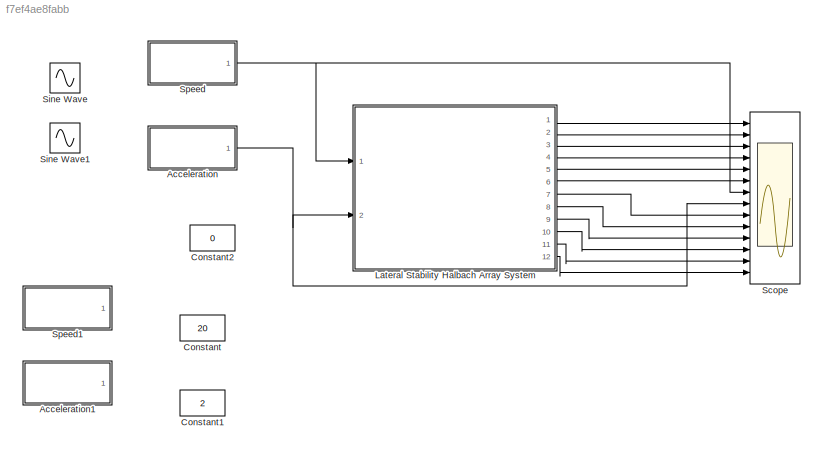
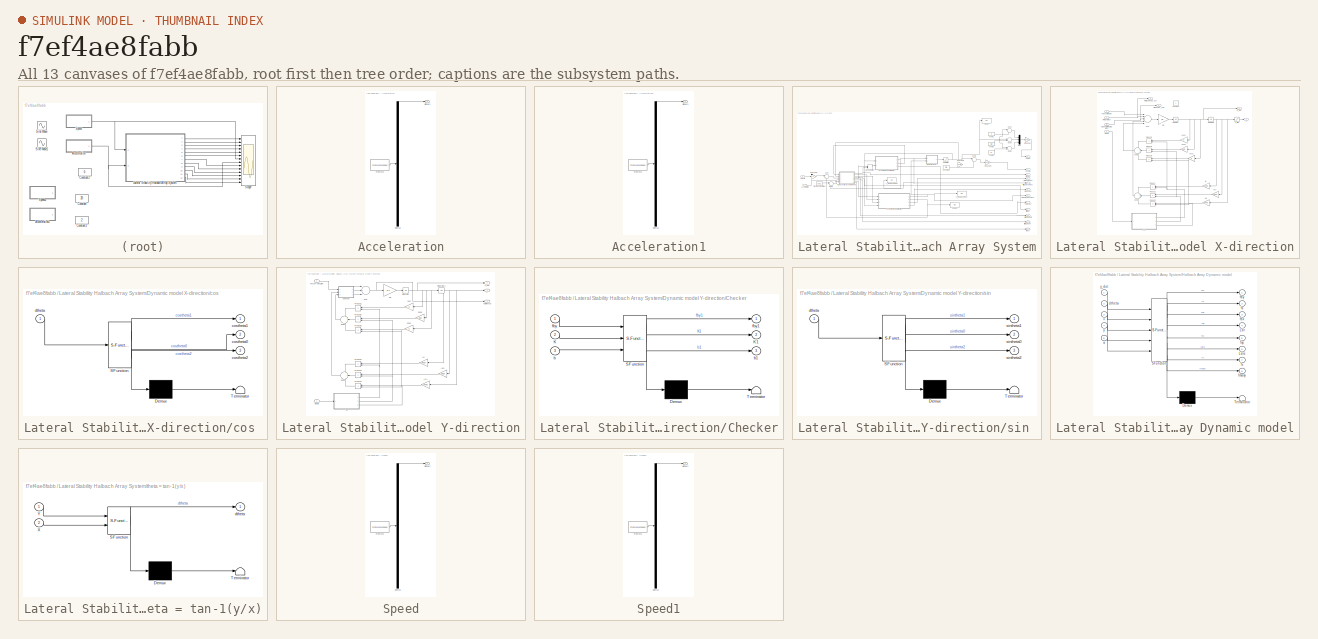
[diagram: thumbnail index - all 13 canvases of the model, root first then tree order]
MODEL slx_f7ef4ae8fabb
KIND model
CONFIG AbsTol = auto
CONFIG EnableMultiTasking = off
CONFIG FixedStep = auto
CONFIG MaxStep = auto
CONFIG MinStep = auto
CONFIG RelTol = 1e-3
CONFIG SampleTimeConstraint = Unconstrained
CONFIG Solver = VariableStepAuto
CONFIG SolverName = VariableStepAuto
CONFIG StartTime = 0.0
CONFIG StopTime = 10
BLOCK [SubSystem] Acceleration
  ClipboardFcn = sigbuilder_block('clipboard');
  CloseFcn = sigbuilder_block('close');
  ContinueFcn = sigbuilder_block('continue');
  CopyFcn = sigbuilder_block('copy');
  DeleteFcn = sigbuilder_block('delete');
  LoadFcn = sigbuilder_block('load');
  MaskHideContents = on
  ModelCloseFcn = sigbuilder_block('modelClose');
  NameChangeFcn = sigbuilder_block('namechange');
  OpenFcn = sigbuilder_block('open',[440.25 156.75 544.5 355.5 ]);
  PauseFcn = sigbuilder_block('pause');
  Ports = [0, 1]
  PreSaveFcn = sigbuilder_block('preSave');
  RequestExecContextInheritance = off
  StartFcn = sigbuilder_block('start');
  StopFcn = sigbuilder_block('stop');
  Tag = STV Subsys
BLOCK [Demux] Acceleration/Demux
  Outputs = 1
  Ports = [1, 1]
  Tag = STV Demux
BLOCK [FromWorkspace] Acceleration/FromWs
  SampleTime = 0
  Tag = STV FromWs
  VariableName = tuvar
  ZeroCross = on
BLOCK [Outport] Acceleration/Signal 2
  IconDisplay = Port number
  Tag = STV Outport
BLOCK [SubSystem] Acceleration1
  ClipboardFcn = sigbuilder_block('clipboard');
  CloseFcn = sigbuilder_block('close');
  ContinueFcn = sigbuilder_block('continue');
  CopyFcn = sigbuilder_block('copy');
  DeleteFcn = sigbuilder_block('delete');
  LoadFcn = sigbuilder_block('load');
  MaskHideContents = on
  ModelCloseFcn = sigbuilder_block('modelClose');
  NameChangeFcn = sigbuilder_block('namechange');
  OpenFcn = sigbuilder_block('open',[440.25 156.75 544.5 355.5 ]);
  PauseFcn = sigbuilder_block('pause');
  Ports = [0, 1]
  PreSaveFcn = sigbuilder_block('preSave');
  RequestExecContextInheritance = off
  StartFcn = sigbuilder_block('start');
  StopFcn = sigbuilder_block('stop');
  Tag = STV Subsys
BLOCK [Demux] Acceleration1/Demux
  Outputs = 1
  Ports = [1, 1]
  Tag = STV Demux
BLOCK [FromWorkspace] Acceleration1/FromWs
  SampleTime = 0
  Tag = STV FromWs
  VariableName = tuvar
  ZeroCross = on
BLOCK [Outport] Acceleration1/Signal 2
  IconDisplay = Port number
  Tag = STV Outport
BLOCK [Constant] Constant
  Value = 20
BLOCK [Constant] Constant1
  Value = 2
BLOCK [Constant] Constant2
  Value = 0
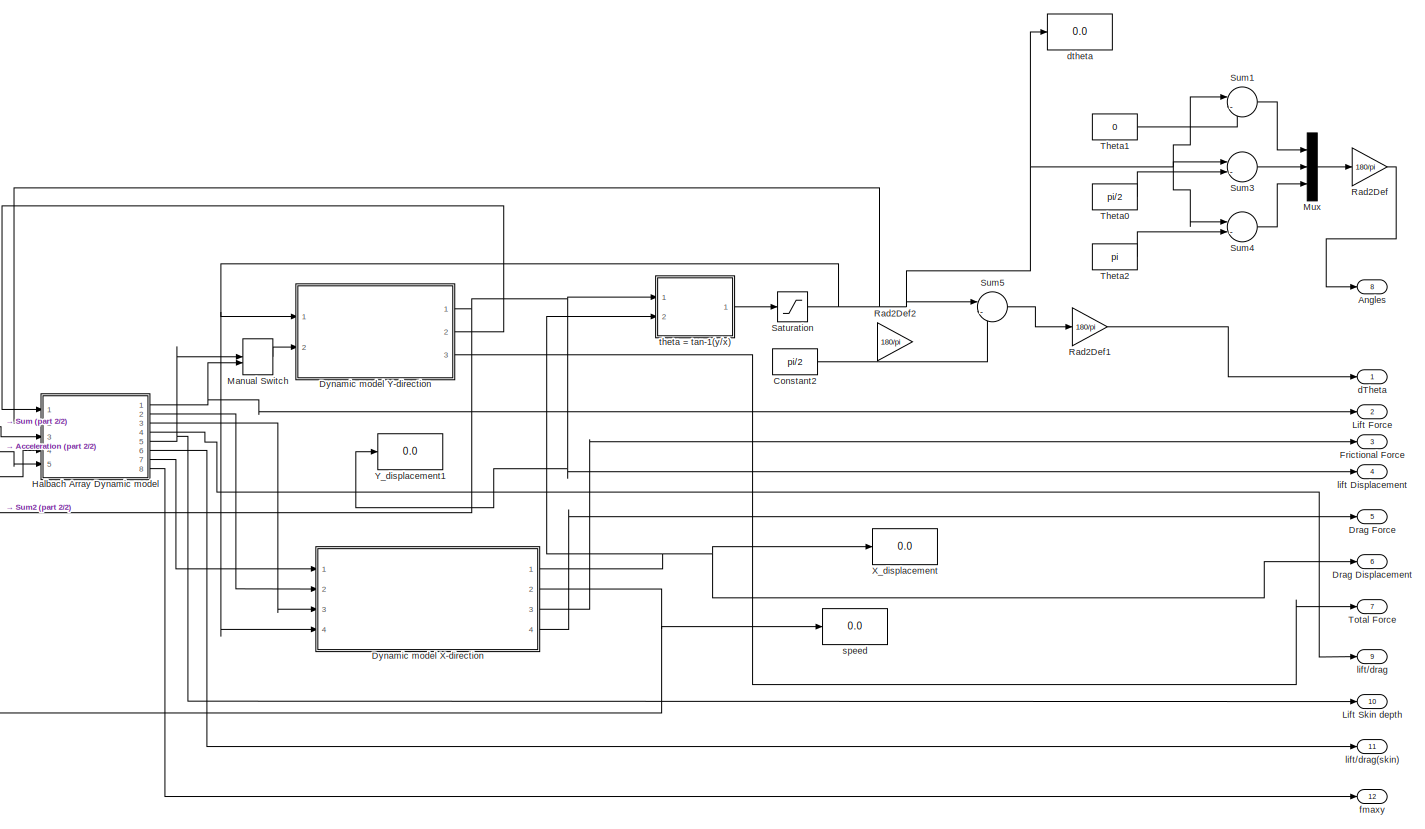
[diagram: Lateral Stability Halbach Array System - part 1/2, most of the canvas]
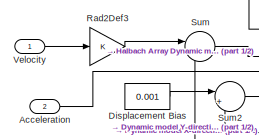
[diagram: Lateral Stability Halbach Array System - part 2/2, middle left region]
BLOCK [SubSystem] Lateral Stability Halbach Array System
  Ports = [2, 12]
  RequestExecContextInheritance = off
BLOCK [Inport] Lateral Stability Halbach Array System/Acceleration
  IconDisplay = Port number
  Port = 2
BLOCK [Outport] Lateral Stability Halbach Array System/Angles
  IconDisplay = Port number
  Port = 8
BLOCK [Constant] Lateral Stability Halbach Array System/Constant2
  Value = pi/2
BLOCK [Constant] Lateral Stability Halbach Array System/Displacement Bias
  Value = 0.001
BLOCK [Outport] Lateral Stability Halbach Array System/Drag Displacement
  IconDisplay = Port number
  Port = 6
BLOCK [Outport] Lateral Stability Halbach Array System/Drag Force
  IconDisplay = Port number
  Port = 5
BLOCK [SubSystem] Lateral Stability Halbach Array System/Dynamic model X-direction
  Ports = [4, 4]
  RequestExecContextInheritance = off
BLOCK [Gain] Lateral Stability Halbach Array System/Dynamic model X-direction/(K)
  Gain = 9400
  OutDataTypeStr = Inherit: Inherit via internal rule
  ParamDataTypeStr = Inherit: Inherit via internal rule
  SaturateOnIntegerOverflow = off
BLOCK [Gain] Lateral Stability Halbach Array System/Dynamic model X-direction/(K)1
  Gain = 9400
  OutDataTypeStr = Inherit: Inherit via internal rule
  ParamDataTypeStr = Inherit: Inherit via internal rule
  SaturateOnIntegerOverflow = off
BLOCK [Gain] Lateral Stability Halbach Array System/Dynamic model X-direction/(Ko)
  Gain = 1000
  OutDataTypeStr = Inherit: Inherit via internal rule
  ParamDataTypeStr = Inherit: Inherit via internal rule
  SaturateOnIntegerOverflow = off
BLOCK [Gain] Lateral Stability Halbach Array System/Dynamic model X-direction/1//m
  Gain = 1/2
  OutDataTypeStr = Inherit: Inherit via internal rule
  ParamDataTypeStr = Inherit: Inherit via internal rule
  SaturateOnIntegerOverflow = off
BLOCK [Constant] Lateral Stability Halbach Array System/Dynamic model X-direction/Constant
BLOCK [Outport] Lateral Stability Halbach Array System/Dynamic model X-direction/Drag Force_out1
  IconDisplay = Port number
  Port = 4
BLOCK [Inport] Lateral Stability Halbach Array System/Dynamic model X-direction/Force X-direction
  IconDisplay = Port number
BLOCK [Outport] Lateral Stability Halbach Array System/Dynamic model X-direction/Frictional Force_out
  IconDisplay = Port number
  Port = 3
BLOCK [Inport] Lateral Stability Halbach Array System/Dynamic model X-direction/Frictional force
  IconDisplay = Port number
  Port = 2
BLOCK [Integrator] Lateral Stability Halbach Array System/Dynamic model X-direction/Integrator
  InitialCondition = 0.000001
  Ports = [1, 1]
BLOCK [Integrator] Lateral Stability Halbach Array System/Dynamic model X-direction/Integrator1
  InitialCondition = 0.000001
  Ports = [1, 1]
BLOCK [Inport] Lateral Stability Halbach Array System/Dynamic model X-direction/Magnetic field Drag force
  IconDisplay = Port number
  Port = 3
BLOCK [Product] Lateral Stability Halbach Array System/Dynamic model X-direction/Product
  InputSameDT = off
  OutDataTypeStr = Inherit: Inherit via internal rule
  Ports = [2, 1]
  RndMeth = Floor
  SaturateOnIntegerOverflow = off
BLOCK [Product] Lateral Stability Halbach Array System/Dynamic model X-direction/Product1
  InputSameDT = off
  OutDataTypeStr = Inherit: Inherit via internal rule
  Ports = [2, 1]
  RndMeth = Floor
  SaturateOnIntegerOverflow = off
BLOCK [Product] Lateral Stability Halbach Array System/Dynamic model X-direction/Product2
  InputSameDT = off
  OutDataTypeStr = Inherit: Inherit via internal rule
  Ports = [2, 1]
  RndMeth = Floor
  SaturateOnIntegerOverflow = off
BLOCK [Product] Lateral Stability Halbach Array System/Dynamic model X-direction/Product4
  InputSameDT = off
  OutDataTypeStr = Inherit: Inherit via internal rule
  Ports = [2, 1]
  RndMeth = Floor
  SaturateOnIntegerOverflow = off
BLOCK [Product] Lateral Stability Halbach Array System/Dynamic model X-direction/Product5
  InputSameDT = off
  OutDataTypeStr = Inherit: Inherit via internal rule
  Ports = [2, 1]
  RndMeth = Floor
  SaturateOnIntegerOverflow = off
BLOCK [Product] Lateral Stability Halbach Array System/Dynamic model X-direction/Product6
  InputSameDT = off
  OutDataTypeStr = Inherit: Inherit via internal rule
  Ports = [2, 1]
  RndMeth = Floor
  SaturateOnIntegerOverflow = off
BLOCK [Sum] Lateral Stability Halbach Array System/Dynamic model X-direction/Sum
  InputSameDT = off
  Inputs = |+----
  OutDataTypeStr = Inherit: Inherit via internal rule
  Ports = [5, 1]
  SaturateOnIntegerOverflow = off
BLOCK [Sum] Lateral Stability Halbach Array System/Dynamic model X-direction/Sum1
  IconShape = round
  InputSameDT = off
  Inputs = +++
  OutDataTypeStr = Inherit: Inherit via internal rule
  Ports = [3, 1]
  SaturateOnIntegerOverflow = off
BLOCK [Sum] Lateral Stability Halbach Array System/Dynamic model X-direction/Sum2
  IconShape = round
  InputSameDT = off
  Inputs = +++
  OutDataTypeStr = Inherit: Inherit via internal rule
  Ports = [3, 1]
  SaturateOnIntegerOverflow = off
BLOCK [Outport] Lateral Stability Halbach Array System/Dynamic model X-direction/X
  IconDisplay = Port number
BLOCK [Outport] Lateral Stability Halbach Array System/Dynamic model X-direction/X_dot
  IconDisplay = Port number
  Port = 2
BLOCK [Saturate] Lateral Stability Halbach Array System/Dynamic model X-direction/X_limit
  InputPortMap = u0
  LowerLimit = -0.005
  Ports = [1, 1]
  UpperLimit = 0.005
BLOCK [Gain] Lateral Stability Halbach Array System/Dynamic model X-direction/beq0
  Gain = 300
  OutDataTypeStr = Inherit: Inherit via internal rule
  ParamDataTypeStr = Inherit: Inherit via internal rule
  SaturateOnIntegerOverflow = off
BLOCK [Gain] Lateral Stability Halbach Array System/Dynamic model X-direction/beq1
  Gain = 0
  OutDataTypeStr = Inherit: Inherit via internal rule
  ParamDataTypeStr = Inherit: Inherit via internal rule
  SaturateOnIntegerOverflow = off
BLOCK [Gain] Lateral Stability Halbach Array System/Dynamic model X-direction/beq2
  Gain = 0
  OutDataTypeStr = Inherit: Inherit via internal rule
  ParamDataTypeStr = Inherit: Inherit via internal rule
  SaturateOnIntegerOverflow = off
BLOCK [SubSystem] Lateral Stability Halbach Array System/Dynamic model X-direction/cos 
  ErrorFcn = Stateflow.Translate.translate
  PermitHierarchicalResolution = ExplicitOnly
  Ports = [1, 3]
  RequestExecContextInheritance = off
  SFBlockType = MATLAB Function
  TreatAsAtomicUnit = on
BLOCK [Demux] Lateral Stability Halbach Array System/Dynamic model X-direction/cos / Demux 
  Outputs = 1
  Ports = [1, 1]
BLOCK [S-Function] Lateral Stability Halbach Array System/Dynamic model X-direction/cos / SFunction 
  EnableBusSupport = on
  FunctionName = sf_sfun
  PortCounts = [1 4]
  Ports = [1, 4]
  SFcnIsStateOwnerBlock = off
  SFunctionDeploymentMode = off
  Tag = Stateflow S-Function LSHA 4
BLOCK [Terminator] Lateral Stability Halbach Array System/Dynamic model X-direction/cos / Terminator 
BLOCK [Outport] Lateral Stability Halbach Array System/Dynamic model X-direction/cos /costheta0
  IconDisplay = Port number
  Port = 2
BLOCK [Outport] Lateral Stability Halbach Array System/Dynamic model X-direction/cos /costheta1
  IconDisplay = Port number
BLOCK [Outport] Lateral Stability Halbach Array System/Dynamic model X-direction/cos /costheta2
  IconDisplay = Port number
  Port = 3
BLOCK [Inport] Lateral Stability Halbach Array System/Dynamic model X-direction/cos /dtheta
  IconDisplay = Port number
BLOCK [Inport] Lateral Stability Halbach Array System/Dynamic model X-direction/dtheta
  IconDisplay = Port number
  Port = 4
BLOCK [SubSystem] Lateral Stability Halbach Array System/Dynamic model Y-direction
  Ports = [2, 3]
  RequestExecContextInheritance = off
BLOCK [Gain] Lateral Stability Halbach Array System/Dynamic model Y-direction/(K)
  Gain = 9400
  OutDataTypeStr = Inherit: Inherit via internal rule
  ParamDataTypeStr = Inherit: Inherit via internal rule
  SaturateOnIntegerOverflow = off
BLOCK [Gain] Lateral Stability Halbach Array System/Dynamic model Y-direction/(K)1
  Gain = 9400
  OutDataTypeStr = Inherit: Inherit via internal rule
  ParamDataTypeStr = Inherit: Inherit via internal rule
  SaturateOnIntegerOverflow = off
BLOCK [Gain] Lateral Stability Halbach Array System/Dynamic model Y-direction/(Ko)
  Gain = 1000
  OutDataTypeStr = Inherit: Inherit via internal rule
  ParamDataTypeStr = Inherit: Inherit via internal rule
  SaturateOnIntegerOverflow = off
BLOCK [Gain] Lateral Stability Halbach Array System/Dynamic model Y-direction/1//m
  Gain = 1/2
  OutDataTypeStr = Inherit: Inherit via internal rule
  ParamDataTypeStr = Inherit: Inherit via internal rule
  SaturateOnIntegerOverflow = off
BLOCK [SubSystem] Lateral Stability Halbach Array System/Dynamic model Y-direction/Checker
  ErrorFcn = Stateflow.Translate.translate
  PermitHierarchicalResolution = ExplicitOnly
  Ports = [3, 3]
  RequestExecContextInheritance = off
  SFBlockType = MATLAB Function
  TreatAsAtomicUnit = on
BLOCK [Demux] Lateral Stability Halbach Array System/Dynamic model Y-direction/Checker/ Demux 
  Outputs = 1
  Ports = [1, 1]
BLOCK [S-Function] Lateral Stability Halbach Array System/Dynamic model Y-direction/Checker/ SFunction 
  EnableBusSupport = on
  FunctionName = sf_sfun
  PortCounts = [3 4]
  Ports = [3, 4]
  SFcnIsStateOwnerBlock = off
  SFunctionDeploymentMode = off
  Tag = Stateflow S-Function LSHA 9
BLOCK [Terminator] Lateral Stability Halbach Array System/Dynamic model Y-direction/Checker/ Terminator 
BLOCK [Inport] Lateral Stability Halbach Array System/Dynamic model Y-direction/Checker/K
  IconDisplay = Port number
  Port = 2
BLOCK [Outport] Lateral Stability Halbach Array System/Dynamic model Y-direction/Checker/K1
  IconDisplay = Port number
  Port = 2
BLOCK [Inport] Lateral Stability Halbach Array System/Dynamic model Y-direction/Checker/b
  IconDisplay = Port number
  Port = 3
BLOCK [Outport] Lateral Stability Halbach Array System/Dynamic model Y-direction/Checker/b1
  IconDisplay = Port number
  Port = 3
BLOCK [Inport] Lateral Stability Halbach Array System/Dynamic model Y-direction/Checker/fby
  IconDisplay = Port number
BLOCK [Outport] Lateral Stability Halbach Array System/Dynamic model Y-direction/Checker/fby1
  IconDisplay = Port number
BLOCK [Inport] Lateral Stability Halbach Array System/Dynamic model Y-direction/Force Y-direction
  IconDisplay = Port number
  Port = 2
BLOCK [Integrator] Lateral Stability Halbach Array System/Dynamic model Y-direction/Integrator
  InitialCondition = 0.000001
  Ports = [1, 1]
BLOCK [Integrator] Lateral Stability Halbach Array System/Dynamic model Y-direction/Integrator1
  InitialCondition = 0.000001
  Ports = [1, 1]
BLOCK [Product] Lateral Stability Halbach Array System/Dynamic model Y-direction/Product1
  InputSameDT = off
  OutDataTypeStr = Inherit: Inherit via internal rule
  Ports = [2, 1]
  RndMeth = Floor
  SaturateOnIntegerOverflow = off
BLOCK [Product] Lateral Stability Halbach Array System/Dynamic model Y-direction/Product2
  InputSameDT = off
  OutDataTypeStr = Inherit: Inherit via internal rule
  Ports = [2, 1]
  RndMeth = Floor
  SaturateOnIntegerOverflow = off
BLOCK [Product] Lateral Stability Halbach Array System/Dynamic model Y-direction/Product3
  InputSameDT = off
  OutDataTypeStr = Inherit: Inherit via internal rule
  Ports = [2, 1]
  RndMeth = Floor
  SaturateOnIntegerOverflow = off
BLOCK [Product] Lateral Stability Halbach Array System/Dynamic model Y-direction/Product4
  InputSameDT = off
  OutDataTypeStr = Inherit: Inherit via internal rule
  Ports = [2, 1]
  RndMeth = Floor
  SaturateOnIntegerOverflow = off
BLOCK [Product] Lateral Stability Halbach Array System/Dynamic model Y-direction/Product5
  InputSameDT = off
  OutDataTypeStr = Inherit: Inherit via internal rule
  Ports = [2, 1]
  RndMeth = Floor
  SaturateOnIntegerOverflow = off
BLOCK [Product] Lateral Stability Halbach Array System/Dynamic model Y-direction/Product6
  InputSameDT = off
  OutDataTypeStr = Inherit: Inherit via internal rule
  Ports = [2, 1]
  RndMeth = Floor
  SaturateOnIntegerOverflow = off
BLOCK [Sum] Lateral Stability Halbach Array System/Dynamic model Y-direction/Sum
  InputSameDT = off
  Inputs = |+--
  OutDataTypeStr = Inherit: Inherit via internal rule
  Ports = [3, 1]
  SaturateOnIntegerOverflow = off
BLOCK [Sum] Lateral Stability Halbach Array System/Dynamic model Y-direction/Sum1
  IconShape = round
  InputSameDT = off
  Inputs = +++
  OutDataTypeStr = Inherit: Inherit via internal rule
  Ports = [3, 1]
  SaturateOnIntegerOverflow = off
BLOCK [Sum] Lateral Stability Halbach Array System/Dynamic model Y-direction/Sum2
  IconShape = round
  InputSameDT = off
  Inputs = +++
  OutDataTypeStr = Inherit: Inherit via internal rule
  Ports = [3, 1]
  SaturateOnIntegerOverflow = off
BLOCK [Outport] Lateral Stability Halbach Array System/Dynamic model Y-direction/Total Force
  IconDisplay = Port number
  Port = 3
BLOCK [Outport] Lateral Stability Halbach Array System/Dynamic model Y-direction/Y
  IconDisplay = Port number
BLOCK [Outport] Lateral Stability Halbach Array System/Dynamic model Y-direction/Y_dot
  IconDisplay = Port number
  Port = 2
BLOCK [Gain] Lateral Stability Halbach Array System/Dynamic model Y-direction/beq
  Gain = 0
  OutDataTypeStr = Inherit: Inherit via internal rule
  ParamDataTypeStr = Inherit: Inherit via internal rule
  SaturateOnIntegerOverflow = off
BLOCK [Gain] Lateral Stability Halbach Array System/Dynamic model Y-direction/beq0
  Gain = 300
  OutDataTypeStr = Inherit: Inherit via internal rule
  ParamDataTypeStr = Inherit: Inherit via internal rule
  SaturateOnIntegerOverflow = off
BLOCK [Gain] Lateral Stability Halbach Array System/Dynamic model Y-direction/beq2
  Gain = 0
  OutDataTypeStr = Inherit: Inherit via internal rule
  ParamDataTypeStr = Inherit: Inherit via internal rule
  SaturateOnIntegerOverflow = off
BLOCK [Inport] Lateral Stability Halbach Array System/Dynamic model Y-direction/dtheta
  IconDisplay = Port number
BLOCK [SubSystem] Lateral Stability Halbach Array System/Dynamic model Y-direction/sin 
  ErrorFcn = Stateflow.Translate.translate
  PermitHierarchicalResolution = ExplicitOnly
  Ports = [1, 3]
  RequestExecContextInheritance = off
  SFBlockType = MATLAB Function
  TreatAsAtomicUnit = on
BLOCK [Demux] Lateral Stability Halbach Array System/Dynamic model Y-direction/sin / Demux 
  Outputs = 1
  Ports = [1, 1]
BLOCK [S-Function] Lateral Stability Halbach Array System/Dynamic model Y-direction/sin / SFunction 
  EnableBusSupport = on
  FunctionName = sf_sfun
  PortCounts = [1 4]
  Ports = [1, 4]
  SFcnIsStateOwnerBlock = off
  SFunctionDeploymentMode = off
  Tag = Stateflow S-Function LSHA 5
BLOCK [Terminator] Lateral Stability Halbach Array System/Dynamic model Y-direction/sin / Terminator 
BLOCK [Inport] Lateral Stability Halbach Array System/Dynamic model Y-direction/sin /dtheta
  IconDisplay = Port number
BLOCK [Outport] Lateral Stability Halbach Array System/Dynamic model Y-direction/sin /sintheta0
  IconDisplay = Port number
  Port = 2
BLOCK [Outport] Lateral Stability Halbach Array System/Dynamic model Y-direction/sin /sintheta1
  IconDisplay = Port number
BLOCK [Outport] Lateral Stability Halbach Array System/Dynamic model Y-direction/sin /sintheta2
  IconDisplay = Port number
  Port = 3
BLOCK [Outport] Lateral Stability Halbach Array System/Frictional Force
  IconDisplay = Port number
  Port = 3
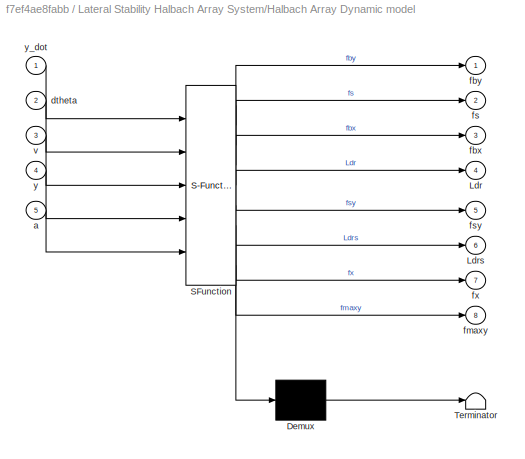
BLOCK [SubSystem] Lateral Stability Halbach Array System/Halbach Array Dynamic model
  ErrorFcn = Stateflow.Translate.translate
  PermitHierarchicalResolution = ExplicitOnly
  Ports = [5, 8]
  RequestExecContextInheritance = off
  SFBlockType = MATLAB Function
  TreatAsAtomicUnit = on
BLOCK [Demux] Lateral Stability Halbach Array System/Halbach Array Dynamic model/ Demux 
  Outputs = 1
  Ports = [1, 1]
BLOCK [S-Function] Lateral Stability Halbach Array System/Halbach Array Dynamic model/ SFunction 
  EnableBusSupport = on
  FunctionName = sf_sfun
  PortCounts = [5 9]
  Ports = [5, 9]
  SFcnIsStateOwnerBlock = off
  SFunctionDeploymentMode = off
  Tag = Stateflow S-Function LSHA 2
BLOCK [Terminator] Lateral Stability Halbach Array System/Halbach Array Dynamic model/ Terminator 
BLOCK [Outport] Lateral Stability Halbach Array System/Halbach Array Dynamic model/Ldr
  IconDisplay = Port number
  Port = 4
BLOCK [Outport] Lateral Stability Halbach Array System/Halbach Array Dynamic model/Ldrs
  IconDisplay = Port number
  Port = 6
BLOCK [Inport] Lateral Stability Halbach Array System/Halbach Array Dynamic model/a
  IconDisplay = Port number
  Port = 5
BLOCK [Inport] Lateral Stability Halbach Array System/Halbach Array Dynamic model/dtheta
  IconDisplay = Port number
  Port = 2
BLOCK [Outport] Lateral Stability Halbach Array System/Halbach Array Dynamic model/fbx
  IconDisplay = Port number
  Port = 3
BLOCK [Outport] Lateral Stability Halbach Array System/Halbach Array Dynamic model/fby
  IconDisplay = Port number
BLOCK [Outport] Lateral Stability Halbach Array System/Halbach Array Dynamic model/fmaxy
  IconDisplay = Port number
  Port = 8
BLOCK [Outport] Lateral Stability Halbach Array System/Halbach Array Dynamic model/fs
  IconDisplay = Port number
  Port = 2
BLOCK [Outport] Lateral Stability Halbach Array System/Halbach Array Dynamic model/fsy
  IconDisplay = Port number
  Port = 5
BLOCK [Outport] Lateral Stability Halbach Array System/Halbach Array Dynamic model/fx
  IconDisplay = Port number
  Port = 7
BLOCK [Inport] Lateral Stability Halbach Array System/Halbach Array Dynamic model/v
  IconDisplay = Port number
  Port = 3
BLOCK [Inport] Lateral Stability Halbach Array System/Halbach Array Dynamic model/y
  IconDisplay = Port number
  Port = 4
BLOCK [Inport] Lateral Stability Halbach Array System/Halbach Array Dynamic model/y_dot
  IconDisplay = Port number
BLOCK [Outport] Lateral Stability Halbach Array System/Lift Force
  IconDisplay = Port number
  Port = 2
BLOCK [Outport] Lateral Stability Halbach Array System/Lift Skin depth
  IconDisplay = Port number
  Port = 10
BLOCK [ManualSwitch] Lateral Stability Halbach Array System/Manual Switch
BLOCK [Mux] Lateral Stability Halbach Array System/Mux
  DisplayOption = bar
  Inputs = 3
  Ports = [3, 1]
BLOCK [Gain] Lateral Stability Halbach Array System/Rad2Def
  Gain = 180/pi
  OutDataTypeStr = Inherit: Inherit via internal rule
  ParamDataTypeStr = Inherit: Inherit via internal rule
  SaturateOnIntegerOverflow = off
BLOCK [Gain] Lateral Stability Halbach Array System/Rad2Def1
  Gain = 180/pi
  OutDataTypeStr = Inherit: Inherit via internal rule
  ParamDataTypeStr = Inherit: Inherit via internal rule
  SaturateOnIntegerOverflow = off
BLOCK [Gain] Lateral Stability Halbach Array System/Rad2Def2
  Gain = 180/pi
  OutDataTypeStr = Inherit: Inherit via internal rule
  ParamDataTypeStr = Inherit: Inherit via internal rule
  SaturateOnIntegerOverflow = off
BLOCK [Gain] Lateral Stability Halbach Array System/Rad2Def3
  OutDataTypeStr = Inherit: Inherit via internal rule
  ParamDataTypeStr = Inherit: Inherit via internal rule
  SaturateOnIntegerOverflow = off
BLOCK [Saturate] Lateral Stability Halbach Array System/Saturation
  InputPortMap = u0
  LowerLimit = -0.044
  Ports = [1, 1]
  UpperLimit = 0.044
BLOCK [Sum] Lateral Stability Halbach Array System/Sum
  IconShape = round
  InputSameDT = off
  Inputs = |++
  OutDataTypeStr = Inherit: Inherit via internal rule
  Ports = [2, 1]
  SaturateOnIntegerOverflow = off
BLOCK [Sum] Lateral Stability Halbach Array System/Sum1
  IconShape = round
  InputSameDT = off
  Inputs = |-+
  OutDataTypeStr = Inherit: Inherit via internal rule
  Ports = [2, 1]
  SaturateOnIntegerOverflow = off
BLOCK [Sum] Lateral Stability Halbach Array System/Sum2
  IconShape = round
  InputSameDT = off
  Inputs = |++
  OutDataTypeStr = Inherit: Inherit via internal rule
  Ports = [2, 1]
  SaturateOnIntegerOverflow = off
BLOCK [Sum] Lateral Stability Halbach Array System/Sum3
  IconShape = round
  InputSameDT = off
  Inputs = |-+
  OutDataTypeStr = Inherit: Inherit via internal rule
  Ports = [2, 1]
  SaturateOnIntegerOverflow = off
BLOCK [Sum] Lateral Stability Halbach Array System/Sum4
  IconShape = round
  InputSameDT = off
  Inputs = |-+
  OutDataTypeStr = Inherit: Inherit via internal rule
  Ports = [2, 1]
  SaturateOnIntegerOverflow = off
BLOCK [Sum] Lateral Stability Halbach Array System/Sum5
  IconShape = round
  InputSameDT = off
  Inputs = |-+
  OutDataTypeStr = Inherit: Inherit via internal rule
  Ports = [2, 1]
  SaturateOnIntegerOverflow = off
BLOCK [Constant] Lateral Stability Halbach Array System/Theta0
  Value = pi/2
BLOCK [Constant] Lateral Stability Halbach Array System/Theta1
  Value = 0
BLOCK [Constant] Lateral Stability Halbach Array System/Theta2
  Value = pi
BLOCK [Outport] Lateral Stability Halbach Array System/Total Force
  IconDisplay = Port number
  Port = 7
BLOCK [Inport] Lateral Stability Halbach Array System/Velocity
  IconDisplay = Port number
BLOCK [Display] Lateral Stability Halbach Array System/X_displacement
  Decimation = 1
  Ports = [1]
BLOCK [Display] Lateral Stability Halbach Array System/Y_displacement1
  Decimation = 1
  Ports = [1]
BLOCK [Outport] Lateral Stability Halbach Array System/dTheta
  IconDisplay = Port number
BLOCK [Display] Lateral Stability Halbach Array System/dtheta
  Decimation = 1
  Ports = [1]
BLOCK [Outport] Lateral Stability Halbach Array System/fmaxy
  IconDisplay = Port number
  Port = 12
BLOCK [Outport] Lateral Stability Halbach Array System/lift Displacement
  IconDisplay = Port number
  Port = 4
BLOCK [Outport] Lateral Stability Halbach Array System/lift//drag
  IconDisplay = Port number
  Port = 9
BLOCK [Outport] Lateral Stability Halbach Array System/lift//drag(skin)
  IconDisplay = Port number
  Port = 11
BLOCK [Display] Lateral Stability Halbach Array System/speed
  Decimation = 1
  Ports = [1]
BLOCK [SubSystem] Lateral Stability Halbach Array System/theta = tan-1(y//x)
  ErrorFcn = Stateflow.Translate.translate
  PermitHierarchicalResolution = ExplicitOnly
  Ports = [2, 1]
  RequestExecContextInheritance = off
  SFBlockType = MATLAB Function
  TreatAsAtomicUnit = on
BLOCK [Demux] Lateral Stability Halbach Array System/theta = tan-1(y//x)/ Demux 
  Outputs = 1
  Ports = [1, 1]
BLOCK [S-Function] Lateral Stability Halbach Array System/theta = tan-1(y//x)/ SFunction 
  EnableBusSupport = on
  FunctionName = sf_sfun
  PortCounts = [2 2]
  Ports = [2, 2]
  SFcnIsStateOwnerBlock = off
  SFunctionDeploymentMode = off
  Tag = Stateflow S-Function LSHA 3
BLOCK [Terminator] Lateral Stability Halbach Array System/theta = tan-1(y//x)/ Terminator 
BLOCK [Inport] Lateral Stability Halbach Array System/theta = tan-1(y//x)/X
  IconDisplay = Port number
  Port = 2
BLOCK [Inport] Lateral Stability Halbach Array System/theta = tan-1(y//x)/Y
  IconDisplay = Port number
BLOCK [Outport] Lateral Stability Halbach Array System/theta = tan-1(y//x)/dtheta
  IconDisplay = Port number
BLOCK [Scope] Scope
  Floating = off
  NumInputPorts = 14
  Ports = [14]
  ScopeSpecificationString = Simulink.scopes.TimeScopeBlockCfg('CurrentConfiguration', extmgr.ConfigurationSet(extmgr.Configuration('Core','General UI',true,'FigureColor',[1 1 1]),extmgr.Configuration('Core','Source UI',true),extmgr.Configuration('Sources','WiredSimulink',true),extmgr.Configuration('Visuals','Time Domain',true,'SerializedDisplays',{struct('MinYLimReal','-4.92784','MaxYLimReal','6.33559','YLabelReal','','MinYL...<+3739ch>
BLOCK [Sin] Sine Wave
  Amplitude = 10
  Ports = [0, 1]
  SampleTime = 0
BLOCK [Sin] Sine Wave1
  Amplitude = 10
  Ports = [0, 1]
  SampleTime = 0
BLOCK [SubSystem] Speed
  ClipboardFcn = sigbuilder_block('clipboard');
  CloseFcn = sigbuilder_block('close');
  ContinueFcn = sigbuilder_block('continue');
  CopyFcn = sigbuilder_block('copy');
  DeleteFcn = sigbuilder_block('delete');
  LoadFcn = sigbuilder_block('load');
  MaskHideContents = on
  ModelCloseFcn = sigbuilder_block('modelClose');
  NameChangeFcn = sigbuilder_block('namechange');
  OpenFcn = sigbuilder_block('open',[437.25 153 550.5 359.25 ]);
  PauseFcn = sigbuilder_block('pause');
  Ports = [0, 1]
  PreSaveFcn = sigbuilder_block('preSave');
  RequestExecContextInheritance = off
  StartFcn = sigbuilder_block('start');
  StopFcn = sigbuilder_block('stop');
  Tag = STV Subsys
BLOCK [Demux] Speed/Demux
  Outputs = 1
  Ports = [1, 1]
  Tag = STV Demux
BLOCK [FromWorkspace] Speed/FromWs
  SampleTime = 0
  Tag = STV FromWs
  VariableName = tuvar
  ZeroCross = on
BLOCK [Outport] Speed/Signal 2
  IconDisplay = Port number
  Tag = STV Outport
BLOCK [SubSystem] Speed1
  ClipboardFcn = sigbuilder_block('clipboard');
  CloseFcn = sigbuilder_block('close');
  ContinueFcn = sigbuilder_block('continue');
  CopyFcn = sigbuilder_block('copy');
  DeleteFcn = sigbuilder_block('delete');
  LoadFcn = sigbuilder_block('load');
  MaskHideContents = on
  ModelCloseFcn = sigbuilder_block('modelClose');
  NameChangeFcn = sigbuilder_block('namechange');
  OpenFcn = sigbuilder_block('open',[437.25 153 550.5 359.25 ]);
  PauseFcn = sigbuilder_block('pause');
  Ports = [0, 1]
  PreSaveFcn = sigbuilder_block('preSave');
  RequestExecContextInheritance = off
  StartFcn = sigbuilder_block('start');
  StopFcn = sigbuilder_block('stop');
  Tag = STV Subsys
BLOCK [Demux] Speed1/Demux
  Outputs = 1
  Ports = [1, 1]
  Tag = STV Demux
BLOCK [FromWorkspace] Speed1/FromWs
  SampleTime = 0
  Tag = STV FromWs
  VariableName = tuvar
  ZeroCross = on
BLOCK [Outport] Speed1/Signal 2
  IconDisplay = Port number
  Tag = STV Outport
NET Acceleration:1 -> Lateral Stability Halbach Array System:2, Scope:8
LINE Lateral Stability Halbach Array System/Acceleration:1 -> Lateral Stability Halbach Array System/Halbach Array Dynamic model:5
LINE Lateral Stability Halbach Array System/Constant2:1 -> Lateral Stability Halbach Array System/Sum5:2
LINE Lateral Stability Halbach Array System/Displacement Bias:1 -> Lateral Stability Halbach Array System/Sum2:1
LINE Lateral Stability Halbach Array System/Dynamic model X-direction/(K)1:1 -> Lateral Stability Halbach Array System/Dynamic model X-direction/Product2:1
LINE Lateral Stability Halbach Array System/Dynamic model X-direction/(K):1 -> Lateral Stability Halbach Array System/Dynamic model X-direction/Product:1
LINE Lateral Stability Halbach Array System/Dynamic model X-direction/(Ko):1 -> Lateral Stability Halbach Array System/Dynamic model X-direction/Product1:1
LINE Lateral Stability Halbach Array System/Dynamic model X-direction/1//m:1 -> Lateral Stability Halbach Array System/Dynamic model X-direction/Integrator:1
LINE Lateral Stability Halbach Array System/Dynamic model X-direction/Force X-direction:1 -> Lateral Stability Halbach Array System/Dynamic model X-direction/Sum:1
NET Lateral Stability Halbach Array System/Dynamic model X-direction/Frictional force:1 -> Lateral Stability Halbach Array System/Dynamic model X-direction/Frictional Force_out:1, Lateral Stability Halbach Array System/Dynamic model X-direction/Sum:2
NET Lateral Stability Halbach Array System/Dynamic model X-direction/Integrator1:1 -> Lateral Stability Halbach Array System/Dynamic model X-direction/(K)1:1, Lateral Stability Halbach Array System/Dynamic model X-direction/(K):1, Lateral Stability Halbach Array System/Dynamic model X-direction/(Ko):1, Lateral Stability Halbach Array System/Dynamic model X-direction/X_limit:1
NET Lateral Stability Halbach Array System/Dynamic model X-direction/Integrator:1 -> Lateral Stability Halbach Array System/Dynamic model X-direction/Integrator1:1, Lateral Stability Halbach Array System/Dynamic model X-direction/X_dot:1, Lateral Stability Halbach Array System/Dynamic model X-direction/beq0:1, Lateral Stability Halbach Array System/Dynamic model X-direction/beq1:1, Lateral Stability Halbach Array System/Dynamic model X-direction/beq2:1
NET Lateral Stability Halbach Array System/Dynamic model X-direction/Magnetic field Drag force:1 -> Lateral Stability Halbach Array System/Dynamic model X-direction/Drag Force_out1:1, Lateral Stability Halbach Array System/Dynamic model X-direction/Sum:3
LINE Lateral Stability Halbach Array System/Dynamic model X-direction/Product1:1 -> Lateral Stability Halbach Array System/Dynamic model X-direction/Sum1:2
LINE Lateral Stability Halbach Array System/Dynamic model X-direction/Product2:1 -> Lateral Stability Halbach Array System/Dynamic model X-direction/Sum1:3
LINE Lateral Stability Halbach Array System/Dynamic model X-direction/Product4:1 -> Lateral Stability Halbach Array System/Dynamic model X-direction/Sum2:1
LINE Lateral Stability Halbach Array System/Dynamic model X-direction/Product5:1 -> Lateral Stability Halbach Array System/Dynamic model X-direction/Sum2:2
LINE Lateral Stability Halbach Array System/Dynamic model X-direction/Product6:1 -> Lateral Stability Halbach Array System/Dynamic model X-direction/Sum2:3
LINE Lateral Stability Halbach Array System/Dynamic model X-direction/Product:1 -> Lateral Stability Halbach Array System/Dynamic model X-direction/Sum1:1
LINE Lateral Stability Halbach Array System/Dynamic model X-direction/Sum1:1 -> Lateral Stability Halbach Array System/Dynamic model X-direction/Sum:4
LINE Lateral Stability Halbach Array System/Dynamic model X-direction/Sum2:1 -> Lateral Stability Halbach Array System/Dynamic model X-direction/Sum:5
LINE Lateral Stability Halbach Array System/Dynamic model X-direction/Sum:1 -> Lateral Stability Halbach Array System/Dynamic model X-direction/1//m:1
LINE Lateral Stability Halbach Array System/Dynamic model X-direction/X_limit:1 -> Lateral Stability Halbach Array System/Dynamic model X-direction/X:1
LINE Lateral Stability Halbach Array System/Dynamic model X-direction/beq0:1 -> Lateral Stability Halbach Array System/Dynamic model X-direction/Product5:1
LINE Lateral Stability Halbach Array System/Dynamic model X-direction/beq1:1 -> Lateral Stability Halbach Array System/Dynamic model X-direction/Product4:1
LINE Lateral Stability Halbach Array System/Dynamic model X-direction/beq2:1 -> Lateral Stability Halbach Array System/Dynamic model X-direction/Product6:1
NET Lateral Stability Halbach Array System/Dynamic model X-direction/cos :1 -> Lateral Stability Halbach Array System/Dynamic model X-direction/Product4:2, Lateral Stability Halbach Array System/Dynamic model X-direction/Product:2
NET Lateral Stability Halbach Array System/Dynamic model X-direction/cos :2 -> Lateral Stability Halbach Array System/Dynamic model X-direction/Product1:2, Lateral Stability Halbach Array System/Dynamic model X-direction/Product5:2
NET Lateral Stability Halbach Array System/Dynamic model X-direction/cos :3 -> Lateral Stability Halbach Array System/Dynamic model X-direction/Product2:2, Lateral Stability Halbach Array System/Dynamic model X-direction/Product6:2
LINE Lateral Stability Halbach Array System/Dynamic model X-direction/dtheta:1 -> Lateral Stability Halbach Array System/Dynamic model X-direction/cos :1
NET Lateral Stability Halbach Array System/Dynamic model X-direction:1 -> Lateral Stability Halbach Array System/Drag Displacement:1, Lateral Stability Halbach Array System/X_displacement:1, Lateral Stability Halbach Array System/theta = tan-1(y//x):2
NET Lateral Stability Halbach Array System/Dynamic model X-direction:2 -> Lateral Stability Halbach Array System/Sum:2, Lateral Stability Halbach Array System/speed:1
LINE Lateral Stability Halbach Array System/Dynamic model X-direction:3 -> Lateral Stability Halbach Array System/Frictional Force:1
LINE Lateral Stability Halbach Array System/Dynamic model X-direction:4 -> Lateral Stability Halbach Array System/Drag Force:1
LINE Lateral Stability Halbach Array System/Dynamic model Y-direction/(K)1:1 -> Lateral Stability Halbach Array System/Dynamic model Y-direction/Product4:1
LINE Lateral Stability Halbach Array System/Dynamic model Y-direction/(K):1 -> Lateral Stability Halbach Array System/Dynamic model Y-direction/Product2:1
LINE Lateral Stability Halbach Array System/Dynamic model Y-direction/(Ko):1 -> Lateral Stability Halbach Array System/Dynamic model Y-direction/Product3:1
LINE Lateral Stability Halbach Array System/Dynamic model Y-direction/1//m:1 -> Lateral Stability Halbach Array System/Dynamic model Y-direction/Integrator:1
LINE Lateral Stability Halbach Array System/Dynamic model Y-direction/Checker:1 -> Lateral Stability Halbach Array System/Dynamic model Y-direction/Sum:1
LINE Lateral Stability Halbach Array System/Dynamic model Y-direction/Checker:2 -> Lateral Stability Halbach Array System/Dynamic model Y-direction/Sum:2
LINE Lateral Stability Halbach Array System/Dynamic model Y-direction/Checker:3 -> Lateral Stability Halbach Array System/Dynamic model Y-direction/Sum:3
LINE Lateral Stability Halbach Array System/Dynamic model Y-direction/Force Y-direction:1 -> Lateral Stability Halbach Array System/Dynamic model Y-direction/Checker:1
NET Lateral Stability Halbach Array System/Dynamic model Y-direction/Integrator1:1 -> Lateral Stability Halbach Array System/Dynamic model Y-direction/(K)1:1, Lateral Stability Halbach Array System/Dynamic model Y-direction/(K):1, Lateral Stability Halbach Array System/Dynamic model Y-direction/(Ko):1, Lateral Stability Halbach Array System/Dynamic model Y-direction/Y:1
NET Lateral Stability Halbach Array System/Dynamic model Y-direction/Integrator:1 -> Lateral Stability Halbach Array System/Dynamic model Y-direction/Integrator1:1, Lateral Stability Halbach Array System/Dynamic model Y-direction/Y_dot:1, Lateral Stability Halbach Array System/Dynamic model Y-direction/beq0:1, Lateral Stability Halbach Array System/Dynamic model Y-direction/beq2:1, Lateral Stability Halbach Array System/Dynamic model Y-direction/beq:1
LINE Lateral Stability Halbach Array System/Dynamic model Y-direction/Product1:1 -> Lateral Stability Halbach Array System/Dynamic model Y-direction/Sum2:1
LINE Lateral Stability Halbach Array System/Dynamic model Y-direction/Product2:1 -> Lateral Stability Halbach Array System/Dynamic model Y-direction/Sum1:1
LINE Lateral Stability Halbach Array System/Dynamic model Y-direction/Product3:1 -> Lateral Stability Halbach Array System/Dynamic model Y-direction/Sum1:2
LINE Lateral Stability Halbach Array System/Dynamic model Y-direction/Product4:1 -> Lateral Stability Halbach Array System/Dynamic model Y-direction/Sum1:3
LINE Lateral Stability Halbach Array System/Dynamic model Y-direction/Product5:1 -> Lateral Stability Halbach Array System/Dynamic model Y-direction/Sum2:2
LINE Lateral Stability Halbach Array System/Dynamic model Y-direction/Product6:1 -> Lateral Stability Halbach Array System/Dynamic model Y-direction/Sum2:3
LINE Lateral Stability Halbach Array System/Dynamic model Y-direction/Sum1:1 -> Lateral Stability Halbach Array System/Dynamic model Y-direction/Checker:2
LINE Lateral Stability Halbach Array System/Dynamic model Y-direction/Sum2:1 -> Lateral Stability Halbach Array System/Dynamic model Y-direction/Checker:3
NET Lateral Stability Halbach Array System/Dynamic model Y-direction/Sum:1 -> Lateral Stability Halbach Array System/Dynamic model Y-direction/1//m:1, Lateral Stability Halbach Array System/Dynamic model Y-direction/Total Force:1
LINE Lateral Stability Halbach Array System/Dynamic model Y-direction/beq0:1 -> Lateral Stability Halbach Array System/Dynamic model Y-direction/Product5:1
LINE Lateral Stability Halbach Array System/Dynamic model Y-direction/beq2:1 -> Lateral Stability Halbach Array System/Dynamic model Y-direction/Product6:1
LINE Lateral Stability Halbach Array System/Dynamic model Y-direction/beq:1 -> Lateral Stability Halbach Array System/Dynamic model Y-direction/Product1:1
LINE Lateral Stability Halbach Array System/Dynamic model Y-direction/dtheta:1 -> Lateral Stability Halbach Array System/Dynamic model Y-direction/sin :1
NET Lateral Stability Halbach Array System/Dynamic model Y-direction/sin :1 -> Lateral Stability Halbach Array System/Dynamic model Y-direction/Product1:2, Lateral Stability Halbach Array System/Dynamic model Y-direction/Product2:2
NET Lateral Stability Halbach Array System/Dynamic model Y-direction/sin :2 -> Lateral Stability Halbach Array System/Dynamic model Y-direction/Product3:2, Lateral Stability Halbach Array System/Dynamic model Y-direction/Product5:2
NET Lateral Stability Halbach Array System/Dynamic model Y-direction/sin :3 -> Lateral Stability Halbach Array System/Dynamic model Y-direction/Product4:2, Lateral Stability Halbach Array System/Dynamic model Y-direction/Product6:2
NET Lateral Stability Halbach Array System/Dynamic model Y-direction:1 -> Lateral Stability Halbach Array System/Sum2:2, Lateral Stability Halbach Array System/Y_displacement1:1, Lateral Stability Halbach Array System/lift Displacement:1, Lateral Stability Halbach Array System/theta = tan-1(y//x):1
LINE Lateral Stability Halbach Array System/Dynamic model Y-direction:2 -> Lateral Stability Halbach Array System/Halbach Array Dynamic model:1
LINE Lateral Stability Halbach Array System/Dynamic model Y-direction:3 -> Lateral Stability Halbach Array System/Total Force:1
NET Lateral Stability Halbach Array System/Halbach Array Dynamic model:1 -> Lateral Stability Halbach Array System/Lift Force:1, Lateral Stability Halbach Array System/Manual Switch:2
LINE Lateral Stability Halbach Array System/Halbach Array Dynamic model:2 -> Lateral Stability Halbach Array System/Dynamic model X-direction:2
LINE Lateral Stability Halbach Array System/Halbach Array Dynamic model:3 -> Lateral Stability Halbach Array System/Dynamic model X-direction:3
LINE Lateral Stability Halbach Array System/Halbach Array Dynamic model:4 -> Lateral Stability Halbach Array System/lift//drag:1
NET Lateral Stability Halbach Array System/Halbach Array Dynamic model:5 -> Lateral Stability Halbach Array System/Lift Skin depth:1, Lateral Stability Halbach Array System/Manual Switch:1
LINE Lateral Stability Halbach Array System/Halbach Array Dynamic model:6 -> Lateral Stability Halbach Array System/lift//drag(skin):1
LINE Lateral Stability Halbach Array System/Halbach Array Dynamic model:7 -> Lateral Stability Halbach Array System/Dynamic model X-direction:1
LINE Lateral Stability Halbach Array System/Halbach Array Dynamic model:8 -> Lateral Stability Halbach Array System/fmaxy:1
LINE Lateral Stability Halbach Array System/Manual Switch:1 -> Lateral Stability Halbach Array System/Dynamic model Y-direction:2
LINE Lateral Stability Halbach Array System/Mux:1 -> Lateral Stability Halbach Array System/Rad2Def:1
LINE Lateral Stability Halbach Array System/Rad2Def1:1 -> Lateral Stability Halbach Array System/dTheta:1
LINE Lateral Stability Halbach Array System/Rad2Def3:1 -> Lateral Stability Halbach Array System/Sum:1
LINE Lateral Stability Halbach Array System/Rad2Def:1 -> Lateral Stability Halbach Array System/Angles:1
NET Lateral Stability Halbach Array System/Saturation:1 -> Lateral Stability Halbach Array System/Dynamic model X-direction:4, Lateral Stability Halbach Array System/Dynamic model Y-direction:1, Lateral Stability Halbach Array System/Halbach Array Dynamic model:2, Lateral Stability Halbach Array System/Sum1:1, Lateral Stability Halbach Array System/Sum3:1, Lateral Stability Halbach Array System/Sum4:1, Lateral Stability Halbach Array System/Sum5:1, Lateral Stability Halbach Array System/dtheta:1
LINE Lateral Stability Halbach Array System/Sum1:1 -> Lateral Stability Halbach Array System/Mux:1
LINE Lateral Stability Halbach Array System/Sum2:1 -> Lateral Stability Halbach Array System/Halbach Array Dynamic model:4
LINE Lateral Stability Halbach Array System/Sum3:1 -> Lateral Stability Halbach Array System/Mux:2
LINE Lateral Stability Halbach Array System/Sum4:1 -> Lateral Stability Halbach Array System/Mux:3
LINE Lateral Stability Halbach Array System/Sum5:1 -> Lateral Stability Halbach Array System/Rad2Def1:1
LINE Lateral Stability Halbach Array System/Sum:1 -> Lateral Stability Halbach Array System/Halbach Array Dynamic model:3
LINE Lateral Stability Halbach Array System/Theta0:1 -> Lateral Stability Halbach Array System/Sum3:2
LINE Lateral Stability Halbach Array System/Theta1:1 -> Lateral Stability Halbach Array System/Sum1:2
LINE Lateral Stability Halbach Array System/Theta2:1 -> Lateral Stability Halbach Array System/Sum4:2
LINE Lateral Stability Halbach Array System/Velocity:1 -> Lateral Stability Halbach Array System/Rad2Def3:1
LINE Lateral Stability Halbach Array System/theta = tan-1(y//x):1 -> Lateral Stability Halbach Array System/Saturation:1
LINE Lateral Stability Halbach Array System:1 -> Scope:1
LINE Lateral Stability Halbach Array System:10 -> Scope:12
LINE Lateral Stability Halbach Array System:11 -> Scope:13
LINE Lateral Stability Halbach Array System:12 -> Scope:14
LINE Lateral Stability Halbach Array System:2 -> Scope:2
LINE Lateral Stability Halbach Array System:3 -> Scope:3
LINE Lateral Stability Halbach Array System:4 -> Scope:4
LINE Lateral Stability Halbach Array System:5 -> Scope:5
LINE Lateral Stability Halbach Array System:6 -> Scope:6
LINE Lateral Stability Halbach Array System:7 -> Scope:9
LINE Lateral Stability Halbach Array System:8 -> Scope:10
LINE Lateral Stability Halbach Array System:9 -> Scope:11
NET Speed:1 -> Lateral Stability Halbach Array System:1, Scope:7
note: NET lines group one-source signal fan-out (src -> all destinations, sorted); 1:1 wires keep LINE
CHART Lateral Stability Halbach Array System/Halbach Array Dynamic model states=1 transitions=1
  STATE_LABEL 'eML_blk_kernel()'
  STATE_LABEL 'SCRIPT:\nfunction [fby,fs,fbx,Ldr,fsy,Ldrs,fx,fmaxy] = fcn(y_dot,dtheta,v,y,a)\n\n%Halbach array parameters\nM = 5;                       %No. of magnets per lambda(1/m)\nB = 1.35;                    %Magnetic field of one magnet(T)\nt = 10*10^-3;                 %thickness of magnet(m)\nw = 10*10^-3;                 %width of magnet(m)\nA = 500 *10^-6;              %Area under halbach array\nL = 6.8*10^-8...<+1795ch>'
CHART Lateral Stability Halbach Array System/theta = tan-1(y//x) states=1 transitions=1
  STATE_LABEL 'eML_blk_kernel()'
  STATE_LABEL 'SCRIPT:\nfunction dtheta  = fcn(Y,X)\n\n\ndtheta = -pi/4+pi/2-atan(Y/X);\n\nif Y==0 || X==0\n    dtheta = 0;\nend'
CHART Lateral Stability Halbach Array System/Dynamic model X-direction/cos  states=1 transitions=1
  STATE_LABEL 'eML_blk_kernel()'
  STATE_LABEL 'SCRIPT:\nfunction [costheta1,costheta0,costheta2]    = fcn(dtheta)\ntheta1 = 0;\ntheta0 = pi/2;\ntheta2 = pi;\ncostheta1 = abs(cos(theta1-dtheta));\ncostheta0 = abs(cos(theta0-dtheta));\ncostheta2 = abs(cos(theta2+dtheta));'
CHART Lateral Stability Halbach Array System/Dynamic model Y-direction/sin  states=1 transitions=1
  STATE_LABEL 'eML_blk_kernel()'
  STATE_LABEL 'SCRIPT:\nfunction [sintheta1,sintheta0,sintheta2]    = fcn(dtheta)\ntheta1 = 0;\ntheta0 = pi/2;\ntheta2 = pi;\nsintheta1 = abs(sin(theta1-dtheta));\nsintheta0 = abs(sin(theta0-dtheta));\nsintheta2 = abs(sin(theta2+dtheta));'
CHART Lateral Stability Halbach Array System/Dynamic model Y-direction/Checker states=1 transitions=1
  STATE_LABEL 'eML_blk_kernel()'
  STATE_LABEL 'SCRIPT:\nfunction [fby1,K1,b1] = fcn(fby,K,b)\n\nif fby==0;\n    fby1 = 0;\n    K1 = 0;\n    b1 = 0;\nelse\n    fby1 = fby;\n    K1 = K;\n    b1 = b;\nend'
